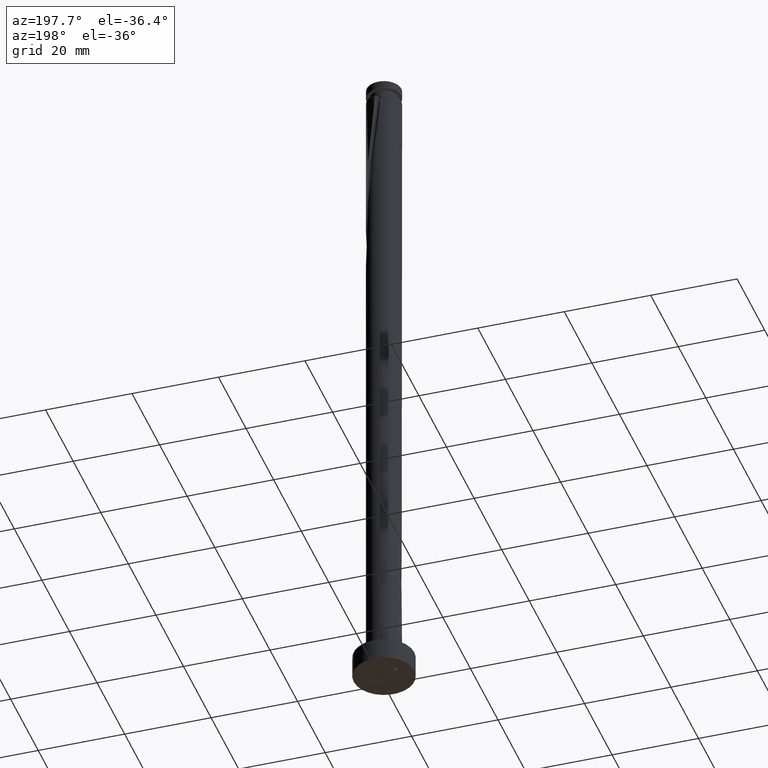
[diagram: clean part render]
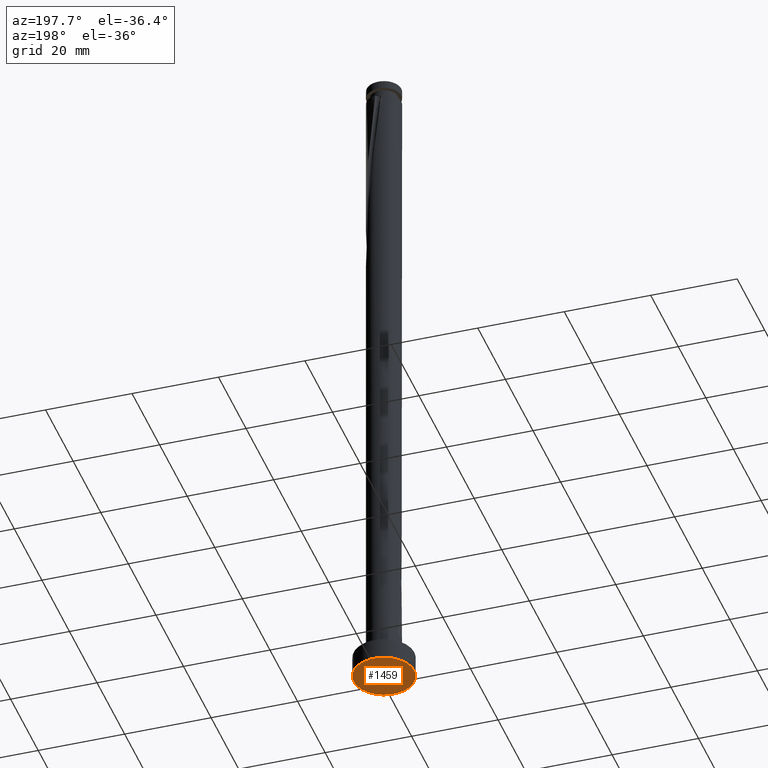
[diagram: same view with one face highlighted and labeled with its STEP entity id]
A machine part, auxiliary view. The second image highlights one B-rep face of the part: STEP entity #1459.
In plain terms, the highlighted planar face has unit normal (0, 0, 1).
Its self-contained STEP definition (entity closure, byte-faithful):
#31 = ORIENTED_EDGE ( 'NONE', *, *, #818, .F. ) ;
#42 = DIRECTION ( 'NONE',  ( 1.000000000000000000, 0.000000000000000000, 0.000000000000000000 ) ) ;
#87 = CARTESIAN_POINT ( 'NONE',  ( -3.943196036639492252, 1.044607589782139856, 2.279979656412516673E-15 ) ) ;
#149 = DIRECTION ( 'NONE',  ( 1.000000000000000000, 0.000000000000000000, 0.000000000000000000 ) ) ;
#358 = CARTESIAN_POINT ( 'NONE',  ( 0.000000000000000000, 0.000000000000000000, 0.000000000000000000 ) ) ;
#372 = CARTESIAN_POINT ( 'NONE',  ( -3.238101114674134084, 2.480867020044822180, 2.279979656412516673E-15 ) ) ;
#400 =( BOUNDED_CURVE ( )  B_SPLINE_CURVE ( 3, ( #2259, #948, #758, #1209 ),
 .UNSPECIFIED., .F., .T. ) 
 B_SPLINE_CURVE_WITH_KNOTS ( ( 4, 4 ),
 ( 1.457193533929306135E-17, 0.002500652332293525938 ),
 .UNSPECIFIED. ) 
 CURVE ( )  GEOMETRIC_REPRESENTATION_ITEM ( )  RATIONAL_B_SPLINE_CURVE ( ( 0.9986161744101162974, 0.3328720581367055065, 0.3328720581367055065, 0.9986161744101162974 ) ) 
 REPRESENTATION_ITEM ( '' )  );
#411 = CARTESIAN_POINT ( 'NONE',  ( -7.000000000000000000, 0.000000000000000000, 0.000000000000000000 ) ) ;
#457 = VERTEX_POINT ( 'NONE', #411 ) ;
#521 = VERTEX_POINT ( 'NONE', #372 ) ;
#594 = DIRECTION ( 'NONE',  ( 0.000000000000000000, 0.000000000000000000, 1.000000000000000000 ) ) ;
#628 = ORIENTED_EDGE ( 'NONE', *, *, #1232, .F. ) ;
#631 = CARTESIAN_POINT ( 'NONE',  ( -3.943196036639492252, 1.044607589782139856, 2.279979656412516673E-15 ) ) ;
#688 = CIRCLE ( 'NONE', #826, 7.000000000000000000 ) ;
#758 = CARTESIAN_POINT ( 'NONE',  ( -2.506936606376785281, 0.3395126678167057488, 2.198551811540641274E-15 ) ) ;
#818 = EDGE_CURVE ( 'NONE', #2464, #457, #688, .T. ) ;
#826 = AXIS2_PLACEMENT_3D ( 'NONE', #358, #594, #149 ) ;
#836 = FACE_BOUND ( 'NONE', #1879, .T. ) ;
#844 = CARTESIAN_POINT ( 'NONE',  ( -3.238101114674134084, 2.480867020044822180, 2.279979656412516673E-15 ) ) ;
#948 = CARTESIAN_POINT ( 'NONE',  ( -1.801841684411400912, 1.775772098079438699, 2.198551811540641274E-15 ) ) ;
#964 = ORIENTED_EDGE ( 'NONE', *, *, #1794, .F. ) ;
#1069 =( BOUNDED_CURVE ( )  B_SPLINE_CURVE ( 1, ( #631, #844 ),
 .UNSPECIFIED., .F., .T. ) 
 B_SPLINE_CURVE_WITH_KNOTS ( ( 2, 2 ),
 ( 0.000000000000000000, 0.001599999999999942614 ),
 .UNSPECIFIED. ) 
 CURVE ( )  GEOMETRIC_REPRESENTATION_ITEM ( )  RATIONAL_B_SPLINE_CURVE ( ( 0.9986161744101162974, 0.9986161744101162974 ) ) 
 REPRESENTATION_ITEM ( '' )  );
#1209 = CARTESIAN_POINT ( 'NONE',  ( -3.943196036639492252, 1.044607589782139856, 2.279979656412516673E-15 ) ) ;
#1232 = EDGE_CURVE ( 'NONE', #457, #2464, #2723, .T. ) ;
#1298 = FACE_OUTER_BOUND ( 'NONE', #2028, .T. ) ;
#1426 = ORIENTED_EDGE ( 'NONE', *, *, #2201, .F. ) ;
#1459 = ADVANCED_FACE ( 'NONE', ( #1298, #836 ), #2568, .F. ) ;
#1485 = DIRECTION ( 'NONE',  ( 1.000000000000000000, 0.000000000000000000, -0.000000000000000000 ) ) ;
#1706 = AXIS2_PLACEMENT_3D ( 'NONE', #2556, #2333, #42 ) ;
#1794 = EDGE_CURVE ( 'NONE', #521, #2469, #400, .T. ) ;
#1879 = EDGE_LOOP ( 'NONE', ( #964, #1426 ) ) ;
#2028 = EDGE_LOOP ( 'NONE', ( #628, #31 ) ) ;
#2097 = CARTESIAN_POINT ( 'NONE',  ( 0.000000000000000000, 0.000000000000000000, 0.000000000000000000 ) ) ;
#2201 = EDGE_CURVE ( 'NONE', #2469, #521, #1069, .T. ) ;
#2221 = AXIS2_PLACEMENT_3D ( 'NONE', #2097, #2527, #1485 ) ;
#2259 = CARTESIAN_POINT ( 'NONE',  ( -3.238101114674134084, 2.480867020044822180, 2.279979656412516673E-15 ) ) ;
#2333 = DIRECTION ( 'NONE',  ( 0.000000000000000000, 0.000000000000000000, 1.000000000000000000 ) ) ;
#2464 = VERTEX_POINT ( 'NONE', #2578 ) ;
#2469 = VERTEX_POINT ( 'NONE', #87 ) ;
#2527 = DIRECTION ( 'NONE',  ( 0.000000000000000000, 0.000000000000000000, 1.000000000000000000 ) ) ;
#2556 = CARTESIAN_POINT ( 'NONE',  ( 0.000000000000000000, 0.000000000000000000, 0.000000000000000000 ) ) ;
#2568 = PLANE ( 'NONE',  #2221 ) ;
#2578 = CARTESIAN_POINT ( 'NONE',  ( 7.000000000000000000, 8.572527594031473190E-16, 0.000000000000000000 ) ) ;
#2723 = CIRCLE ( 'NONE', #1706, 7.000000000000000000 ) ;